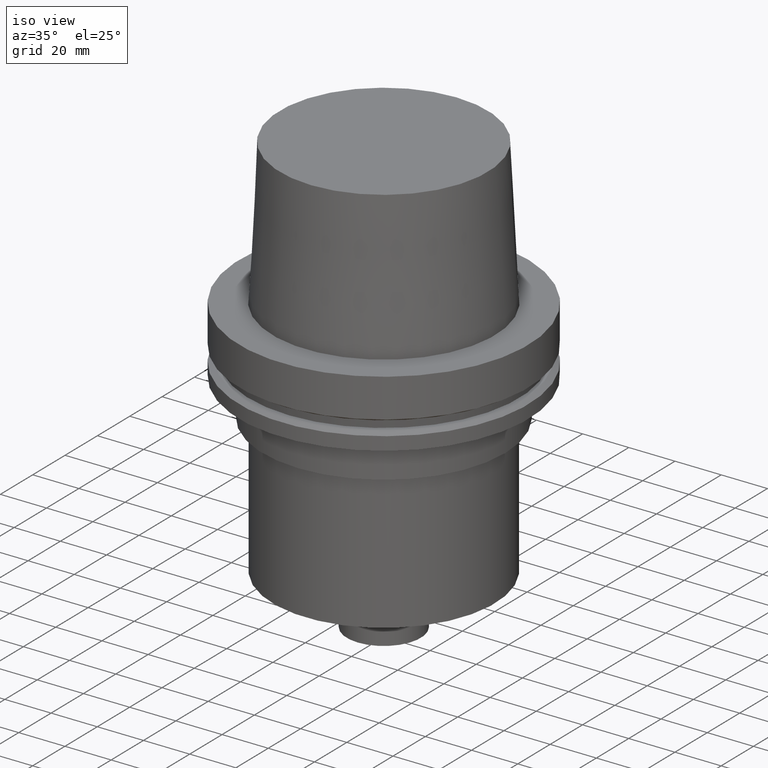
[diagram: clean part render]
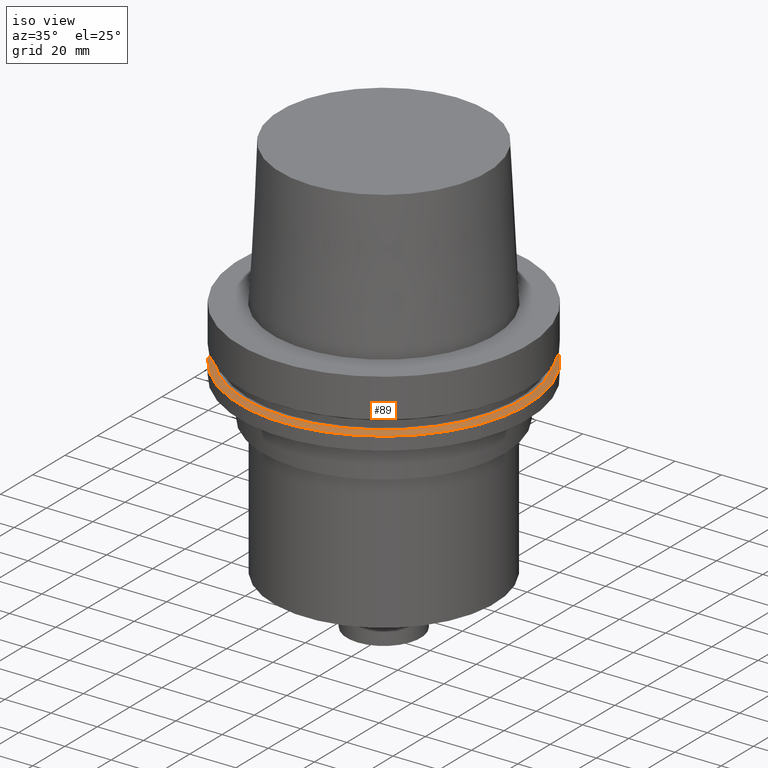
[diagram: same view with one face highlighted and labeled with its STEP entity id]
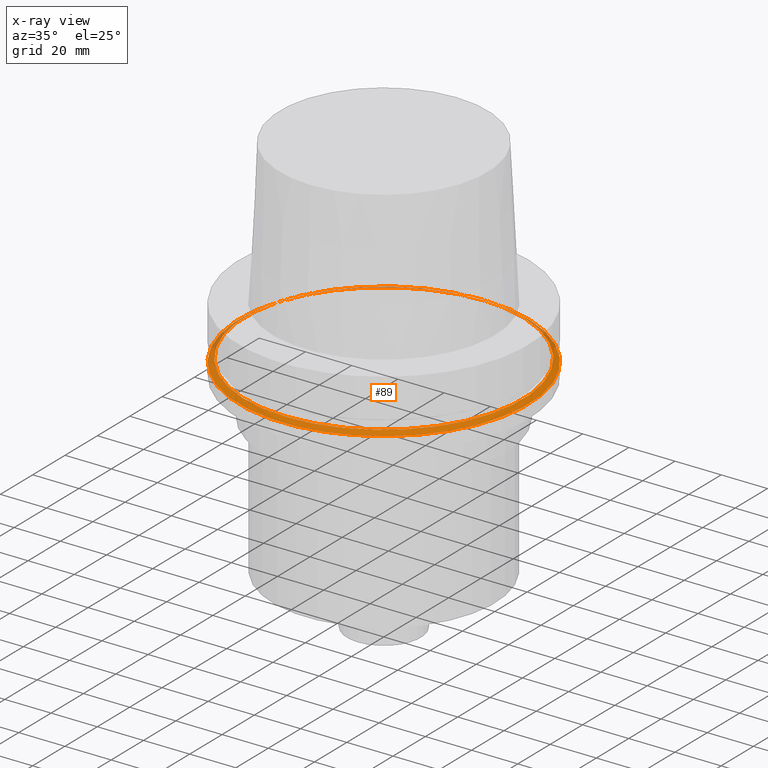
[diagram: x-ray of the same camera — body ghosted, the highlighted face saturated]
A machine part, iso view. The second image highlights one B-rep face of the part: STEP entity #89.
The next image is the same camera in x-ray: the body ghosted, the highlighted face saturated — about 12% of this face is hidden behind the body in this view.
In plain terms, the highlighted conical surface has half-angle 60 deg.
Its self-contained STEP definition (entity closure, byte-faithful):
#83=EDGE_CURVE('Unnamed[1]',#204,#204,#205,.T.);
#89=ADVANCED_FACE('Unnamed[1]',(#213,#214),#215,.T.);
#122=EDGE_CURVE('Unnamed[1]',#265,#265,#266,.T.);
#204=VERTEX_POINT('',#361);
#205=CIRCLE('',#362,60.122595264194);
#213=FACE_BOUND('',#372,.T.);
#214=FACE_BOUND('',#373,.T.);
#215=CONICAL_SURFACE('',#374,61.311297632097,1.04719755119646);
#265=VERTEX_POINT('',#438);
#266=CIRCLE('',#439,62.5);
#361=CARTESIAN_POINT('',(1.33945743656747E-015,60.122595264194,-21.8750000000009));
#362=AXIS2_PLACEMENT_3D('',#536,#537,#538);
#372=EDGE_LOOP('',(#546));
#373=EDGE_LOOP('',(#547));
#374=AXIS2_PLACEMENT_3D('',#548,#549,#550);
#438=CARTESIAN_POINT('',(1.42350465640827E-015,62.5,-23.2475952641916));
#439=AXIS2_PLACEMENT_3D('',#604,#605,#606);
#536=CARTESIAN_POINT('',(1.33945743656747E-015,2.67891487313494E-015,-21.8750000000009));
#537=DIRECTION('',(6.12323399573677E-017,1.22464679914735E-016,-1.0));
#538=DIRECTION('',(-1.23259516440783E-032,1.0,1.22464679914735E-016));
#546=ORIENTED_EDGE('',*,*,#122,.F.);
#547=ORIENTED_EDGE('',*,*,#83,.T.);
#548=CARTESIAN_POINT('',(1.38148104648787E-015,2.76296209297574E-015,-22.5612976320962));
#549=DIRECTION('',(6.12323399573677E-017,1.22464679914735E-016,-1.0));
#550=DIRECTION('',(-1.23259516440783E-032,1.0,1.22464679914735E-016));
#604=CARTESIAN_POINT('',(1.42350465640827E-015,2.84700931281654E-015,-23.2475952641916));
#605=DIRECTION('',(6.12323399573677E-017,1.22464679914735E-016,-1.0));
#606=DIRECTION('',(-1.23259516440783E-032,1.0,1.22464679914735E-016));